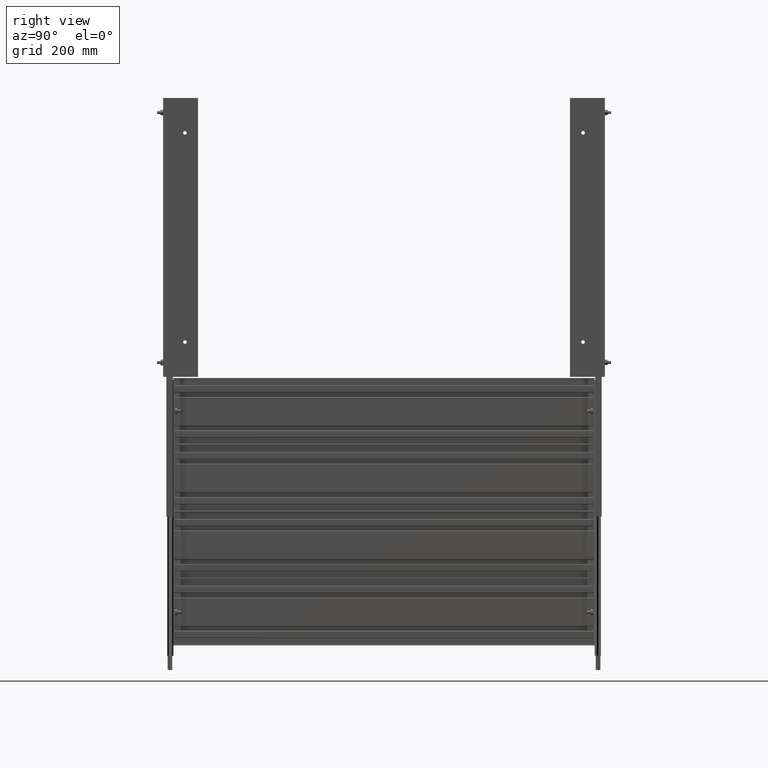
[diagram: clean part render]
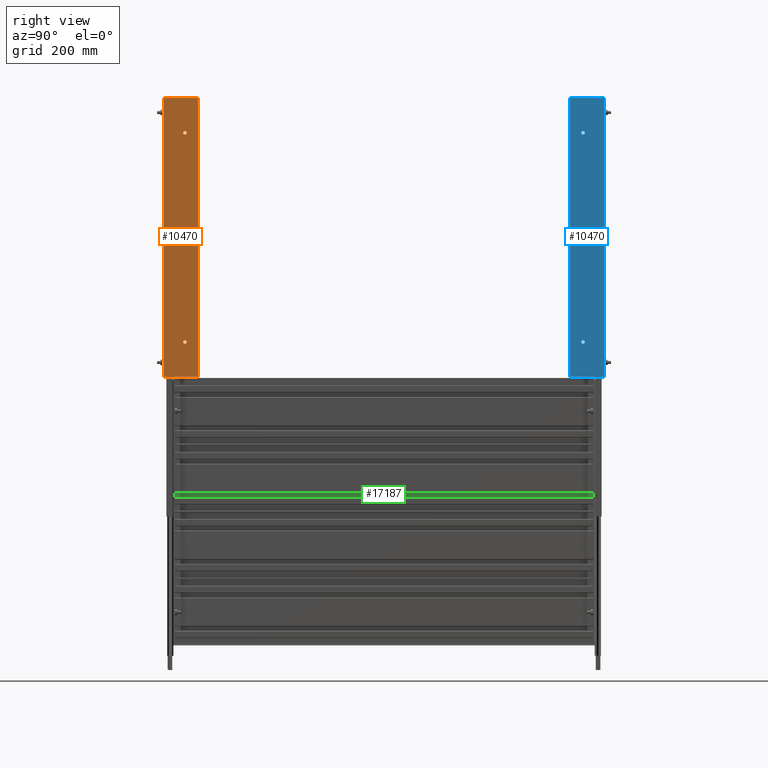
[diagram: same view with three faces highlighted in distinct colors, each labeled with its STEP entity id]
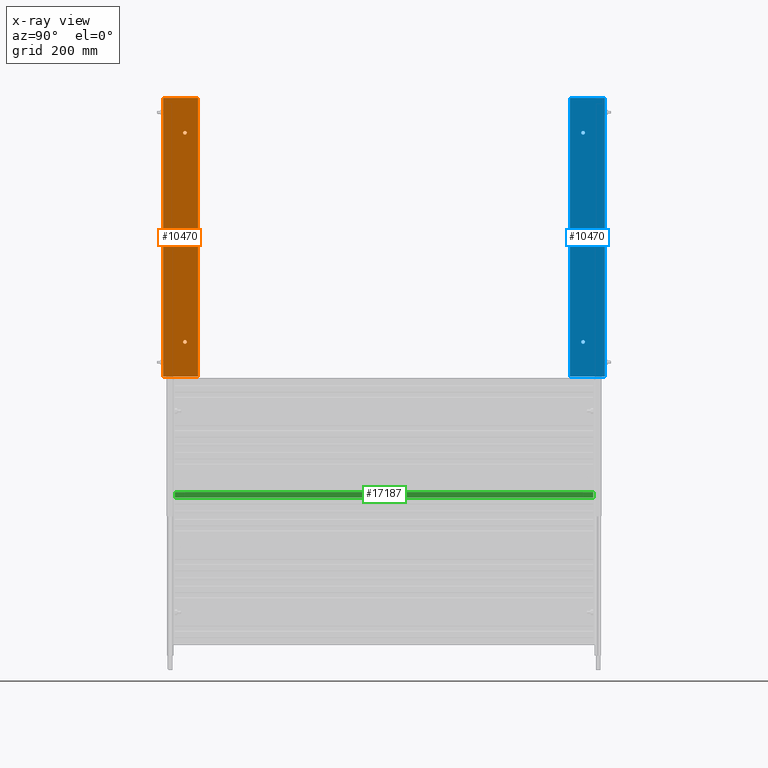
[diagram: x-ray of the same camera — body ghosted, the three highlighted faces saturated]
A machine part, right view with three faces highlighted in distinct colors.
The next image is the same camera in x-ray (body ghosted, the three faces saturated) — at least one of them is partly hidden behind the body in this view.
Their STEP definitions:

[orange] entity #10470 — the highlighted planar face has unit normal (1, 0, 0).
#261 = EDGE_CURVE ( 'NONE', #9715, #4827, #16690, .T. ) ;
#667 = ORIENTED_EDGE ( 'NONE', *, *, #15961, .F. ) ;
#1420 = ORIENTED_EDGE ( 'NONE', *, *, #18426, .T. ) ;
#1437 = CARTESIAN_POINT ( 'NONE',  ( 3.000000000000000400, 9.184850993605152100E-017, -24.00000000000000400 ) ) ;
#1526 = DIRECTION ( 'NONE',  ( 1.000000000000000000, 3.061616997868384300E-017, -0.0000000000000000000 ) ) ;
#1801 = AXIS2_PLACEMENT_3D ( 'NONE', #3298, #6770, #18765 ) ;
#2933 = DIRECTION ( 'NONE',  ( 3.061616997868384300E-017, -1.000000000000000000, 0.0000000000000000000 ) ) ;
#3091 = EDGE_LOOP ( 'NONE', ( #12938, #15167 ) ) ;
#3286 = FACE_OUTER_BOUND ( 'NONE', #10080, .T. ) ;
#3298 = CARTESIAN_POINT ( 'NONE',  ( 3.000000000000000400, 9.184850993605152100E-017, -24.00000000000000400 ) ) ;
#3437 = EDGE_CURVE ( 'NONE', #9715, #9092, #14988, .T. ) ;
#3746 = DIRECTION ( 'NONE',  ( 3.061616997868384300E-017, -1.000000000000000000, 0.0000000000000000000 ) ) ;
#3797 = CARTESIAN_POINT ( 'NONE',  ( 2.031250000000002700, 6.218909526920162700E-017, -2.999999999999999600 ) ) ;
#4774 = AXIS2_PLACEMENT_3D ( 'NONE', #5866, #17868, #7596 ) ;
#4827 = VERTEX_POINT ( 'NONE', #14164 ) ;
#4965 = ORIENTED_EDGE ( 'NONE', *, *, #17341, .F. ) ;
#5033 = PLANE ( 'NONE',  #1801 ) ;
#5866 = CARTESIAN_POINT ( 'NONE',  ( 1.875000000000002400, 5.740531871003228600E-017, -2.999999999999999600 ) ) ;
#6022 = DIRECTION ( 'NONE',  ( 1.000000000000000000, 3.061616997868384300E-017, -0.0000000000000000000 ) ) ;
#6030 = AXIS2_PLACEMENT_3D ( 'NONE', #13195, #2933, #14920 ) ;
#6443 = VECTOR ( 'NONE', #1526, 39.37007874015748100 ) ;
#6662 = CARTESIAN_POINT ( 'NONE',  ( 1.718750000000002400, 5.262154215086293200E-017, -2.999999999999999600 ) ) ;
#6770 = DIRECTION ( 'NONE',  ( 3.061616997868384300E-017, -1.000000000000000000, 0.0000000000000000000 ) ) ;
#7019 = AXIS2_PLACEMENT_3D ( 'NONE', #13993, #3746, #15738 ) ;
#7046 = VECTOR ( 'NONE', #11516, 39.37007874015748100 ) ;
#7596 = DIRECTION ( 'NONE',  ( 1.000000000000000000, 3.061616997868383600E-017, 0.0000000000000000000 ) ) ;
#7627 = VERTEX_POINT ( 'NONE', #20172 ) ;
#8054 = CARTESIAN_POINT ( 'NONE',  ( 0.0000000000000000000, 0.0000000000000000000, -24.00000000000000400 ) ) ;
#8240 = CIRCLE ( 'NONE', #6030, 0.1562500000000000000 ) ;
#9092 = VERTEX_POINT ( 'NONE', #20213 ) ;
#9168 = CARTESIAN_POINT ( 'NONE',  ( 2.031250000000001300, 6.218909526920160300E-017, -21.00000000000000000 ) ) ;
#9465 = CARTESIAN_POINT ( 'NONE',  ( 1.875000000000002400, 5.740531871003228600E-017, -21.00000000000000000 ) ) ;
#9715 = VERTEX_POINT ( 'NONE', #22196 ) ;
#10080 = EDGE_LOOP ( 'NONE', ( #4965, #20649, #13914, #1420 ) ) ;
#10470 = ADVANCED_FACE ( 'NONE', ( #12408, #12951, #3286 ), #5033, .T. ) ;
#11220 = DIRECTION ( 'NONE',  ( 1.000000000000000000, 3.061616997868385500E-017, 0.0000000000000000000 ) ) ;
#11505 = CIRCLE ( 'NONE', #12824, 0.1562499999999989200 ) ;
#11516 = DIRECTION ( 'NONE',  ( 0.0000000000000000000, 0.0000000000000000000, 1.000000000000000000 ) ) ;
#12303 = CIRCLE ( 'NONE', #7019, 0.1562499999999989200 ) ;
#12396 = VERTEX_POINT ( 'NONE', #3797 ) ;
#12408 = FACE_BOUND ( 'NONE', #3091, .T. ) ;
#12475 = VECTOR ( 'NONE', #21634, 39.37007874015748100 ) ;
#12824 = AXIS2_PLACEMENT_3D ( 'NONE', #9465, #21479, #11220 ) ;
#12938 = ORIENTED_EDGE ( 'NONE', *, *, #17490, .F. ) ;
#12951 = FACE_BOUND ( 'NONE', #19140, .T. ) ;
#13195 = CARTESIAN_POINT ( 'NONE',  ( 1.875000000000002400, 5.740531871003228600E-017, -2.999999999999999600 ) ) ;
#13914 = ORIENTED_EDGE ( 'NONE', *, *, #3437, .T. ) ;
#13993 = CARTESIAN_POINT ( 'NONE',  ( 1.875000000000002400, 5.740531871003228600E-017, -21.00000000000000000 ) ) ;
#14164 = CARTESIAN_POINT ( 'NONE',  ( 0.0000000000000000000, 0.0000000000000000000, 0.0000000000000000000 ) ) ;
#14920 = DIRECTION ( 'NONE',  ( 1.000000000000000000, 3.061616997868383600E-017, 0.0000000000000000000 ) ) ;
#14924 = LINE ( 'NONE', #16275, #20076 ) ;
#14988 = LINE ( 'NONE', #1437, #6443 ) ;
#15047 = ORIENTED_EDGE ( 'NONE', *, *, #20423, .F. ) ;
#15167 = ORIENTED_EDGE ( 'NONE', *, *, #20365, .F. ) ;
#15738 = DIRECTION ( 'NONE',  ( 1.000000000000000000, 3.061616997868385500E-017, 0.0000000000000000000 ) ) ;
#15961 = EDGE_CURVE ( 'NONE', #17651, #22048, #12303, .T. ) ;
#16275 = CARTESIAN_POINT ( 'NONE',  ( 3.000000000000000400, 9.184850993605152100E-017, 0.0000000000000000000 ) ) ;
#16690 = LINE ( 'NONE', #8054, #7046 ) ;
#17046 = LINE ( 'NONE', #19908, #12475 ) ;
#17110 = CIRCLE ( 'NONE', #4774, 0.1562500000000000000 ) ;
#17341 = EDGE_CURVE ( 'NONE', #4827, #7627, #14924, .T. ) ;
#17490 = EDGE_CURVE ( 'NONE', #12396, #21744, #8240, .T. ) ;
#17651 = VERTEX_POINT ( 'NONE', #22131 ) ;
#17868 = DIRECTION ( 'NONE',  ( 3.061616997868384300E-017, -1.000000000000000000, 0.0000000000000000000 ) ) ;
#18426 = EDGE_CURVE ( 'NONE', #9092, #7627, #17046, .T. ) ;
#18765 = DIRECTION ( 'NONE',  ( 1.000000000000000000, 3.061616997868384300E-017, 0.0000000000000000000 ) ) ;
#19140 = EDGE_LOOP ( 'NONE', ( #15047, #667 ) ) ;
#19908 = CARTESIAN_POINT ( 'NONE',  ( 3.000000000000000400, 9.184850993605152100E-017, -24.00000000000000400 ) ) ;
#20076 = VECTOR ( 'NONE', #6022, 39.37007874015748100 ) ;
#20172 = CARTESIAN_POINT ( 'NONE',  ( 3.000000000000000400, 9.184850993605152100E-017, 0.0000000000000000000 ) ) ;
#20213 = CARTESIAN_POINT ( 'NONE',  ( 3.000000000000000400, 9.184850993605152100E-017, -24.00000000000000400 ) ) ;
#20365 = EDGE_CURVE ( 'NONE', #21744, #12396, #17110, .T. ) ;
#20423 = EDGE_CURVE ( 'NONE', #22048, #17651, #11505, .T. ) ;
#20649 = ORIENTED_EDGE ( 'NONE', *, *, #261, .F. ) ;
#21479 = DIRECTION ( 'NONE',  ( 3.061616997868384300E-017, -1.000000000000000000, 0.0000000000000000000 ) ) ;
#21634 = DIRECTION ( 'NONE',  ( 0.0000000000000000000, 0.0000000000000000000, 1.000000000000000000 ) ) ;
#21744 = VERTEX_POINT ( 'NONE', #6662 ) ;
#22048 = VERTEX_POINT ( 'NONE', #9168 ) ;
#22131 = CARTESIAN_POINT ( 'NONE',  ( 1.718750000000003600, 5.262154215086299300E-017, -21.00000000000000000 ) ) ;
#22196 = CARTESIAN_POINT ( 'NONE',  ( 0.0000000000000000000, 0.0000000000000000000, -24.00000000000000400 ) ) ;

[blue] entity #10470 — the highlighted planar face has unit normal (1, -0, 0).
#261 = EDGE_CURVE ( 'NONE', #9715, #4827, #16690, .T. ) ;
#667 = ORIENTED_EDGE ( 'NONE', *, *, #15961, .F. ) ;
#1420 = ORIENTED_EDGE ( 'NONE', *, *, #18426, .T. ) ;
#1437 = CARTESIAN_POINT ( 'NONE',  ( 3.000000000000000400, 9.184850993605152100E-017, -24.00000000000000400 ) ) ;
#1526 = DIRECTION ( 'NONE',  ( 1.000000000000000000, 3.061616997868384300E-017, -0.0000000000000000000 ) ) ;
#1801 = AXIS2_PLACEMENT_3D ( 'NONE', #3298, #6770, #18765 ) ;
#2933 = DIRECTION ( 'NONE',  ( 3.061616997868384300E-017, -1.000000000000000000, 0.0000000000000000000 ) ) ;
#3091 = EDGE_LOOP ( 'NONE', ( #12938, #15167 ) ) ;
#3286 = FACE_OUTER_BOUND ( 'NONE', #10080, .T. ) ;
#3298 = CARTESIAN_POINT ( 'NONE',  ( 3.000000000000000400, 9.184850993605152100E-017, -24.00000000000000400 ) ) ;
#3437 = EDGE_CURVE ( 'NONE', #9715, #9092, #14988, .T. ) ;
#3746 = DIRECTION ( 'NONE',  ( 3.061616997868384300E-017, -1.000000000000000000, 0.0000000000000000000 ) ) ;
#3797 = CARTESIAN_POINT ( 'NONE',  ( 2.031250000000002700, 6.218909526920162700E-017, -2.999999999999999600 ) ) ;
#4774 = AXIS2_PLACEMENT_3D ( 'NONE', #5866, #17868, #7596 ) ;
#4827 = VERTEX_POINT ( 'NONE', #14164 ) ;
#4965 = ORIENTED_EDGE ( 'NONE', *, *, #17341, .F. ) ;
#5033 = PLANE ( 'NONE',  #1801 ) ;
#5866 = CARTESIAN_POINT ( 'NONE',  ( 1.875000000000002400, 5.740531871003228600E-017, -2.999999999999999600 ) ) ;
#6022 = DIRECTION ( 'NONE',  ( 1.000000000000000000, 3.061616997868384300E-017, -0.0000000000000000000 ) ) ;
#6030 = AXIS2_PLACEMENT_3D ( 'NONE', #13195, #2933, #14920 ) ;
#6443 = VECTOR ( 'NONE', #1526, 39.37007874015748100 ) ;
#6662 = CARTESIAN_POINT ( 'NONE',  ( 1.718750000000002400, 5.262154215086293200E-017, -2.999999999999999600 ) ) ;
#6770 = DIRECTION ( 'NONE',  ( 3.061616997868384300E-017, -1.000000000000000000, 0.0000000000000000000 ) ) ;
#7019 = AXIS2_PLACEMENT_3D ( 'NONE', #13993, #3746, #15738 ) ;
#7046 = VECTOR ( 'NONE', #11516, 39.37007874015748100 ) ;
#7596 = DIRECTION ( 'NONE',  ( 1.000000000000000000, 3.061616997868383600E-017, 0.0000000000000000000 ) ) ;
#7627 = VERTEX_POINT ( 'NONE', #20172 ) ;
#8054 = CARTESIAN_POINT ( 'NONE',  ( 0.0000000000000000000, 0.0000000000000000000, -24.00000000000000400 ) ) ;
#8240 = CIRCLE ( 'NONE', #6030, 0.1562500000000000000 ) ;
#9092 = VERTEX_POINT ( 'NONE', #20213 ) ;
#9168 = CARTESIAN_POINT ( 'NONE',  ( 2.031250000000001300, 6.218909526920160300E-017, -21.00000000000000000 ) ) ;
#9465 = CARTESIAN_POINT ( 'NONE',  ( 1.875000000000002400, 5.740531871003228600E-017, -21.00000000000000000 ) ) ;
#9715 = VERTEX_POINT ( 'NONE', #22196 ) ;
#10080 = EDGE_LOOP ( 'NONE', ( #4965, #20649, #13914, #1420 ) ) ;
#10470 = ADVANCED_FACE ( 'NONE', ( #12408, #12951, #3286 ), #5033, .T. ) ;
#11220 = DIRECTION ( 'NONE',  ( 1.000000000000000000, 3.061616997868385500E-017, 0.0000000000000000000 ) ) ;
#11505 = CIRCLE ( 'NONE', #12824, 0.1562499999999989200 ) ;
#11516 = DIRECTION ( 'NONE',  ( 0.0000000000000000000, 0.0000000000000000000, 1.000000000000000000 ) ) ;
#12303 = CIRCLE ( 'NONE', #7019, 0.1562499999999989200 ) ;
#12396 = VERTEX_POINT ( 'NONE', #3797 ) ;
#12408 = FACE_BOUND ( 'NONE', #3091, .T. ) ;
#12475 = VECTOR ( 'NONE', #21634, 39.37007874015748100 ) ;
#12824 = AXIS2_PLACEMENT_3D ( 'NONE', #9465, #21479, #11220 ) ;
#12938 = ORIENTED_EDGE ( 'NONE', *, *, #17490, .F. ) ;
#12951 = FACE_BOUND ( 'NONE', #19140, .T. ) ;
#13195 = CARTESIAN_POINT ( 'NONE',  ( 1.875000000000002400, 5.740531871003228600E-017, -2.999999999999999600 ) ) ;
#13914 = ORIENTED_EDGE ( 'NONE', *, *, #3437, .T. ) ;
#13993 = CARTESIAN_POINT ( 'NONE',  ( 1.875000000000002400, 5.740531871003228600E-017, -21.00000000000000000 ) ) ;
#14164 = CARTESIAN_POINT ( 'NONE',  ( 0.0000000000000000000, 0.0000000000000000000, 0.0000000000000000000 ) ) ;
#14920 = DIRECTION ( 'NONE',  ( 1.000000000000000000, 3.061616997868383600E-017, 0.0000000000000000000 ) ) ;
#14924 = LINE ( 'NONE', #16275, #20076 ) ;
#14988 = LINE ( 'NONE', #1437, #6443 ) ;
#15047 = ORIENTED_EDGE ( 'NONE', *, *, #20423, .F. ) ;
#15167 = ORIENTED_EDGE ( 'NONE', *, *, #20365, .F. ) ;
#15738 = DIRECTION ( 'NONE',  ( 1.000000000000000000, 3.061616997868385500E-017, 0.0000000000000000000 ) ) ;
#15961 = EDGE_CURVE ( 'NONE', #17651, #22048, #12303, .T. ) ;
#16275 = CARTESIAN_POINT ( 'NONE',  ( 3.000000000000000400, 9.184850993605152100E-017, 0.0000000000000000000 ) ) ;
#16690 = LINE ( 'NONE', #8054, #7046 ) ;
#17046 = LINE ( 'NONE', #19908, #12475 ) ;
#17110 = CIRCLE ( 'NONE', #4774, 0.1562500000000000000 ) ;
#17341 = EDGE_CURVE ( 'NONE', #4827, #7627, #14924, .T. ) ;
#17490 = EDGE_CURVE ( 'NONE', #12396, #21744, #8240, .T. ) ;
#17651 = VERTEX_POINT ( 'NONE', #22131 ) ;
#17868 = DIRECTION ( 'NONE',  ( 3.061616997868384300E-017, -1.000000000000000000, 0.0000000000000000000 ) ) ;
#18426 = EDGE_CURVE ( 'NONE', #9092, #7627, #17046, .T. ) ;
#18765 = DIRECTION ( 'NONE',  ( 1.000000000000000000, 3.061616997868384300E-017, 0.0000000000000000000 ) ) ;
#19140 = EDGE_LOOP ( 'NONE', ( #15047, #667 ) ) ;
#19908 = CARTESIAN_POINT ( 'NONE',  ( 3.000000000000000400, 9.184850993605152100E-017, -24.00000000000000400 ) ) ;
#20076 = VECTOR ( 'NONE', #6022, 39.37007874015748100 ) ;
#20172 = CARTESIAN_POINT ( 'NONE',  ( 3.000000000000000400, 9.184850993605152100E-017, 0.0000000000000000000 ) ) ;
#20213 = CARTESIAN_POINT ( 'NONE',  ( 3.000000000000000400, 9.184850993605152100E-017, -24.00000000000000400 ) ) ;
#20365 = EDGE_CURVE ( 'NONE', #21744, #12396, #17110, .T. ) ;
#20423 = EDGE_CURVE ( 'NONE', #22048, #17651, #11505, .T. ) ;
#20649 = ORIENTED_EDGE ( 'NONE', *, *, #261, .F. ) ;
#21479 = DIRECTION ( 'NONE',  ( 3.061616997868384300E-017, -1.000000000000000000, 0.0000000000000000000 ) ) ;
#21634 = DIRECTION ( 'NONE',  ( 0.0000000000000000000, 0.0000000000000000000, 1.000000000000000000 ) ) ;
#21744 = VERTEX_POINT ( 'NONE', #6662 ) ;
#22048 = VERTEX_POINT ( 'NONE', #9168 ) ;
#22131 = CARTESIAN_POINT ( 'NONE',  ( 1.718750000000003600, 5.262154215086299300E-017, -21.00000000000000000 ) ) ;
#22196 = CARTESIAN_POINT ( 'NONE',  ( 0.0000000000000000000, 0.0000000000000000000, -24.00000000000000400 ) ) ;

[green] entity #17187 — the highlighted planar face has unit normal (1, -0, 0).
#605 = CARTESIAN_POINT ( 'NONE',  ( -1.187593444153405500, 0.7930000000000274600, -36.00000000000000000 ) ) ;
#778 = DIRECTION ( 'NONE',  ( 0.0000000000000000000, 0.0000000000000000000, 1.000000000000000000 ) ) ;
#1838 = CARTESIAN_POINT ( 'NONE',  ( -1.685989104633238000, 0.7930000000000275700, -36.00000000000000000 ) ) ;
#1852 = EDGE_CURVE ( 'NONE', #5223, #9262, #9427, .T. ) ;
#2114 = DIRECTION ( 'NONE',  ( 1.000000000000000000, 2.740641833673034100E-016, 0.0000000000000000000 ) ) ;
#2484 = ORIENTED_EDGE ( 'NONE', *, *, #18929, .F. ) ;
#2991 = AXIS2_PLACEMENT_3D ( 'NONE', #8936, #12382, #2114 ) ;
#3213 = VERTEX_POINT ( 'NONE', #19759 ) ;
#4399 = VECTOR ( 'NONE', #7491, 39.37007874015748100 ) ;
#5223 = VERTEX_POINT ( 'NONE', #1838 ) ;
#6013 = VERTEX_POINT ( 'NONE', #21022 ) ;
#7119 = EDGE_LOOP ( 'NONE', ( #16630, #2484, #16718, #19998 ) ) ;
#7157 = PLANE ( 'NONE',  #2991 ) ;
#7491 = DIRECTION ( 'NONE',  ( 0.0000000000000000000, 0.0000000000000000000, 1.000000000000000000 ) ) ;
#8734 = CARTESIAN_POINT ( 'NONE',  ( -1.685989104633238000, 0.7930000000000273500, -36.00000000000000000 ) ) ;
#8936 = CARTESIAN_POINT ( 'NONE',  ( -1.685989104633238000, 0.7930000000000273500, -36.00000000000000000 ) ) ;
#9043 = FACE_OUTER_BOUND ( 'NONE', #7119, .T. ) ;
#9262 = VERTEX_POINT ( 'NONE', #605 ) ;
#9427 = LINE ( 'NONE', #8734, #18560 ) ;
#11054 = CARTESIAN_POINT ( 'NONE',  ( -1.187593444153405500, 0.7930000000000274600, -36.00000000000000000 ) ) ;
#12382 = DIRECTION ( 'NONE',  ( 2.740641833673034100E-016, -1.000000000000000000, 0.0000000000000000000 ) ) ;
#12559 = VECTOR ( 'NONE', #778, 39.37007874015748100 ) ;
#13550 = LINE ( 'NONE', #21032, #22162 ) ;
#16177 = EDGE_CURVE ( 'NONE', #9262, #6013, #17123, .T. ) ;
#16630 = ORIENTED_EDGE ( 'NONE', *, *, #21996, .F. ) ;
#16718 = ORIENTED_EDGE ( 'NONE', *, *, #1852, .T. ) ;
#17123 = LINE ( 'NONE', #11054, #12559 ) ;
#17187 = ADVANCED_FACE ( 'NONE', ( #9043 ), #7157, .T. ) ;
#17568 = DIRECTION ( 'NONE',  ( 1.000000000000000000, 2.740641833673034100E-016, 0.0000000000000000000 ) ) ;
#17746 = CARTESIAN_POINT ( 'NONE',  ( -1.685989104633238000, 0.7930000000000275700, -36.00000000000000000 ) ) ;
#18560 = VECTOR ( 'NONE', #19007, 39.37007874015748100 ) ;
#18929 = EDGE_CURVE ( 'NONE', #5223, #3213, #21610, .T. ) ;
#19007 = DIRECTION ( 'NONE',  ( 1.000000000000000000, 2.740641833673034100E-016, 0.0000000000000000000 ) ) ;
#19759 = CARTESIAN_POINT ( 'NONE',  ( -1.685989104633238000, 0.7930000000000275700, 0.0000000000000000000 ) ) ;
#19998 = ORIENTED_EDGE ( 'NONE', *, *, #16177, .T. ) ;
#21022 = CARTESIAN_POINT ( 'NONE',  ( -1.187593444153405500, 0.7930000000000274600, 0.0000000000000000000 ) ) ;
#21032 = CARTESIAN_POINT ( 'NONE',  ( -1.685989104633238000, 0.7930000000000273500, 0.0000000000000000000 ) ) ;
#21610 = LINE ( 'NONE', #17746, #4399 ) ;
#21996 = EDGE_CURVE ( 'NONE', #3213, #6013, #13550, .T. ) ;
#22162 = VECTOR ( 'NONE', #17568, 39.37007874015748100 ) ;